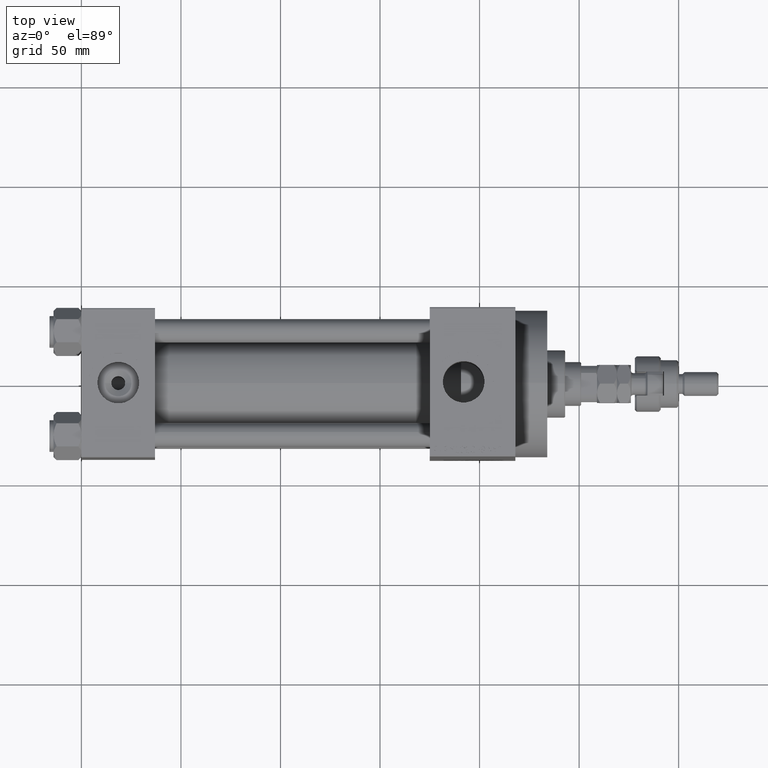
[diagram: clean part render]
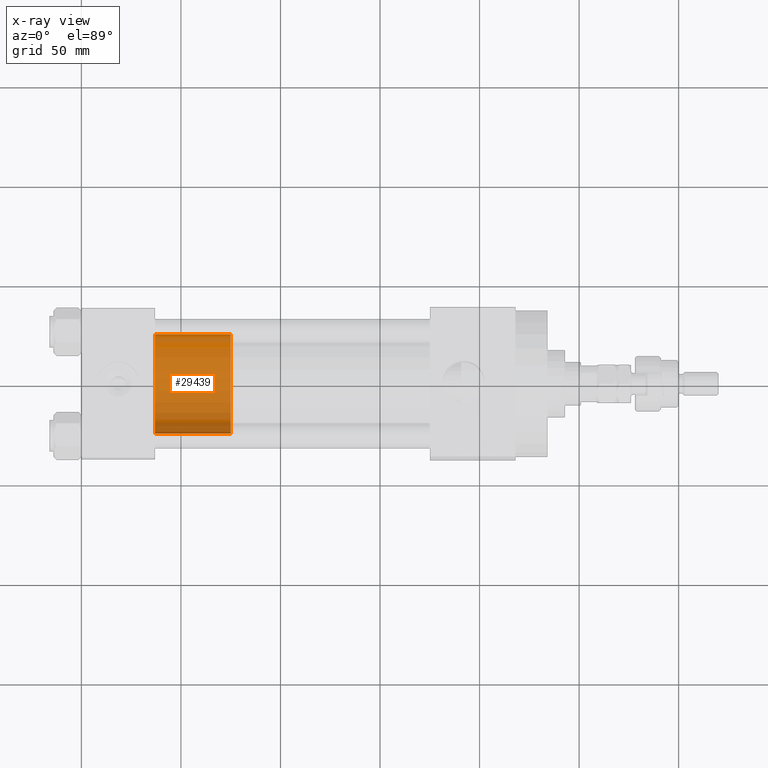
[diagram: x-ray — body ghosted, one internal face saturated and labeled with its STEP entity id]
A machine part, top view, then the same camera in x-ray: the body is ghosted and one INTERNAL B-rep face — a face not visible from any outside direction — is saturated and labeled: STEP entity #29439.
In plain terms, the highlighted cylindrical surface (partial cylindrical patch) has radius 25 mm, axis along (-1, 0, 0).
Its self-contained STEP definition (entity closure, byte-faithful):
#226 = ORIENTED_EDGE ( 'NONE', *, *, #2468, .T. ) ;
#1408 = CARTESIAN_POINT ( 'NONE',  ( 0.000000000000000000, 0.000000000000000000, 38.00000000000000000 ) ) ;
#1598 = DIRECTION ( 'NONE',  ( 1.000000000000000000, 0.000000000000000000, 0.000000000000000000 ) ) ;
#2468 = EDGE_CURVE ( 'NONE', #27044, #40515, #46211, .T. ) ;
#4467 = DIRECTION ( 'NONE',  ( 0.000000000000000000, 0.000000000000000000, 1.000000000000000000 ) ) ;
#6196 = CIRCLE ( 'NONE', #17527, 25.00000000000000000 ) ;
#6244 = CARTESIAN_POINT ( 'NONE',  ( -25.00000000000000000, 0.000000000000000000, 0.000000000000000000 ) ) ;
#7090 = ORIENTED_EDGE ( 'NONE', *, *, #43313, .T. ) ;
#9103 = VECTOR ( 'NONE', #46631, 1000.000000000000000 ) ;
#13987 = VERTEX_POINT ( 'NONE', #6244 ) ;
#14663 = VERTEX_POINT ( 'NONE', #44384 ) ;
#14764 = EDGE_CURVE ( 'NONE', #14663, #13987, #35668, .T. ) ;
#17216 = FACE_OUTER_BOUND ( 'NONE', #27940, .T. ) ;
#17527 = AXIS2_PLACEMENT_3D ( 'NONE', #48061, #20632, #1598 ) ;
#20207 = DIRECTION ( 'NONE',  ( 1.000000000000000000, 0.000000000000000000, 0.000000000000000000 ) ) ;
#20632 = DIRECTION ( 'NONE',  ( 0.000000000000000000, 0.000000000000000000, 1.000000000000000000 ) ) ;
#21817 = VECTOR ( 'NONE', #45199, 1000.000000000000000 ) ;
#22093 = CARTESIAN_POINT ( 'NONE',  ( 25.00000000000000000, 3.061616997868383043E-15, 38.00000000000000000 ) ) ;
#24212 = CARTESIAN_POINT ( 'NONE',  ( 25.00000000000000000, 3.061616997868383043E-15, 0.000000000000000000 ) ) ;
#27044 = VERTEX_POINT ( 'NONE', #48543 ) ;
#27940 = EDGE_LOOP ( 'NONE', ( #34781, #226, #7090, #33992 ) ) ;
#28639 = CYLINDRICAL_SURFACE ( 'NONE', #48475, 25.00000000000000000 ) ;
#28894 = DIRECTION ( 'NONE',  ( -0.000000000000000000, -0.000000000000000000, -1.000000000000000000 ) ) ;
#29145 = CIRCLE ( 'NONE', #48616, 25.00000000000000000 ) ;
#29439 = ADVANCED_FACE ( 'NONE', ( #17216 ), #28639, .T. ) ;
#33992 = ORIENTED_EDGE ( 'NONE', *, *, #14764, .F. ) ;
#34781 = ORIENTED_EDGE ( 'NONE', *, *, #37172, .F. ) ;
#35171 = CARTESIAN_POINT ( 'NONE',  ( -25.00000000000000000, 0.000000000000000000, 38.00000000000000000 ) ) ;
#35668 = LINE ( 'NONE', #35171, #9103 ) ;
#36757 = DIRECTION ( 'NONE',  ( -1.000000000000000000, 0.000000000000000000, 0.000000000000000000 ) ) ;
#37172 = EDGE_CURVE ( 'NONE', #27044, #14663, #29145, .T. ) ;
#40515 = VERTEX_POINT ( 'NONE', #24212 ) ;
#43313 = EDGE_CURVE ( 'NONE', #40515, #13987, #6196, .T. ) ;
#44384 = CARTESIAN_POINT ( 'NONE',  ( -25.00000000000000000, 0.000000000000000000, 38.00000000000000000 ) ) ;
#45199 = DIRECTION ( 'NONE',  ( -0.000000000000000000, -0.000000000000000000, -1.000000000000000000 ) ) ;
#46211 = LINE ( 'NONE', #22093, #21817 ) ;
#46631 = DIRECTION ( 'NONE',  ( -0.000000000000000000, -0.000000000000000000, -1.000000000000000000 ) ) ;
#48061 = CARTESIAN_POINT ( 'NONE',  ( 0.000000000000000000, 0.000000000000000000, 0.000000000000000000 ) ) ;
#48453 = CARTESIAN_POINT ( 'NONE',  ( 0.000000000000000000, 0.000000000000000000, 38.00000000000000000 ) ) ;
#48475 = AXIS2_PLACEMENT_3D ( 'NONE', #48453, #28894, #36757 ) ;
#48543 = CARTESIAN_POINT ( 'NONE',  ( 25.00000000000000000, 3.061616997868383043E-15, 38.00000000000000000 ) ) ;
#48616 = AXIS2_PLACEMENT_3D ( 'NONE', #1408, #4467, #20207 ) ;